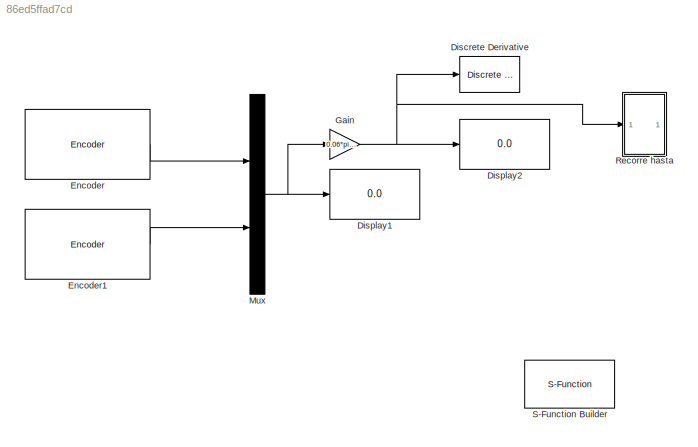
MODEL slx_86ed5ffad7cd
KIND model
CONFIG AbsTol = auto
CONFIG EnableMultiTasking = on
CONFIG FixedStep = auto
CONFIG MaxStep = auto
CONFIG MinStep = auto
CONFIG RelTol = 1e-3
CONFIG SampleTimeConstraint = Unconstrained
CONFIG SolverName = FixedStepAuto
CONFIG StartTime = 0.0
CONFIG StopTime = 10.0
BLOCK [Reference] Discrete Derivative  REF=simulink/Discrete/Discrete Derivative
  SourceBlock = simulink/Discrete/Discrete Derivative
  SourceType = Discrete Derivative
BLOCK [Display] Display1
  Decimation = 1
BLOCK [Display] Display2
  Decimation = 1
BLOCK [Reference] Encoder  REF=arduinosensorlib/Encoder
  SourceBlock = arduinosensorlib/Encoder
  SourceType = Arduino Rotary Encoder
BLOCK [Reference] Encoder1  REF=arduinosensorlib/Encoder
  SourceBlock = arduinosensorlib/Encoder
  SourceType = Arduino Rotary Encoder
BLOCK [Gain] Gain
  Gain = 0.06*pi/1960
BLOCK [Mux] Mux
  DisplayOption = bar
  Inputs = 2
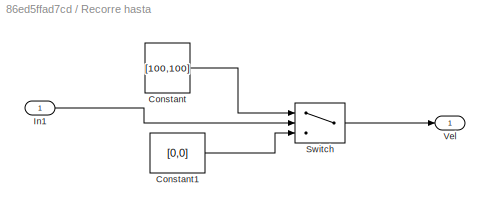
BLOCK [SubSystem] Recorre hasta
BLOCK [Constant] Recorre hasta/Constant
  Value = [100,100]
BLOCK [Constant] Recorre hasta/Constant1
  Value = [0,0]
BLOCK [Inport] Recorre hasta/In1
BLOCK [Switch] Recorre hasta/Switch
  Criteria = u2 > Threshold
  InputSameDT = off
  SaturateOnIntegerOverflow = off
  Threshold = 4.1
BLOCK [Outport] Recorre hasta/Vel
BLOCK [S-Function] S-Function Builder
  CopyFcn = set_param(gcbh,'LinkStatus','none')
  EnableBusSupport = off
  OpenFcn = sfunctionwizard(gcbh)
  SFcnIsStateOwnerBlock = off
  SFunctionDeploymentMode = off
LINE Encoder1:1 -> Mux:2
LINE Encoder:1 -> Mux:1
NET Gain:1 -> Discrete Derivative:1, Display2:1, Recorre hasta:1
NET Mux:1 -> Display1:1, Gain:1
LINE Recorre hasta/Constant1:1 -> Recorre hasta/Switch:3
LINE Recorre hasta/Constant:1 -> Recorre hasta/Switch:1
LINE Recorre hasta/In1:1 -> Recorre hasta/Switch:2
LINE Recorre hasta/Switch:1 -> Recorre hasta/Vel:1
note: NET lines group one-source signal fan-out (src -> all destinations, sorted); 1:1 wires keep LINE
